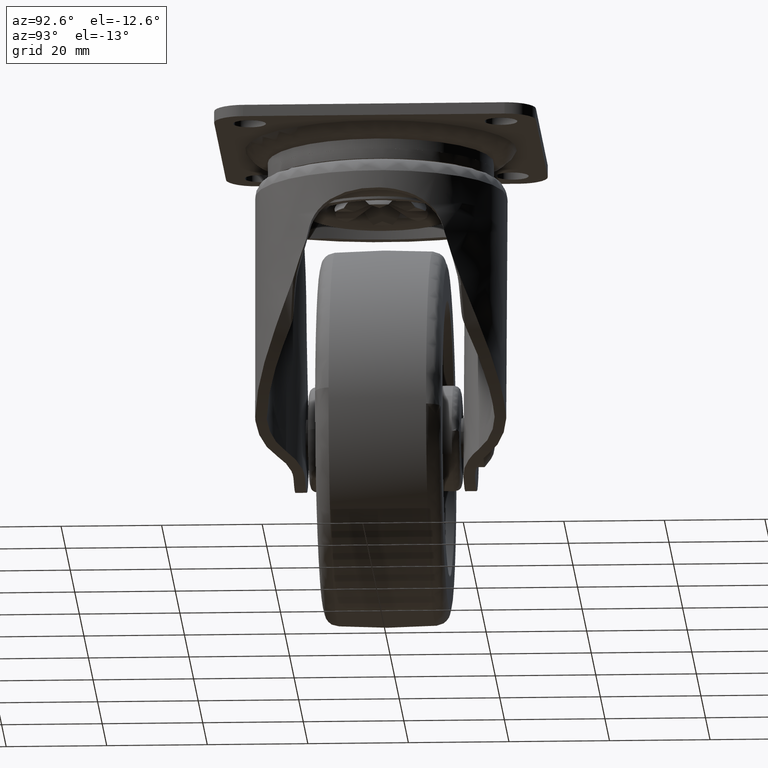
[diagram: clean part render]
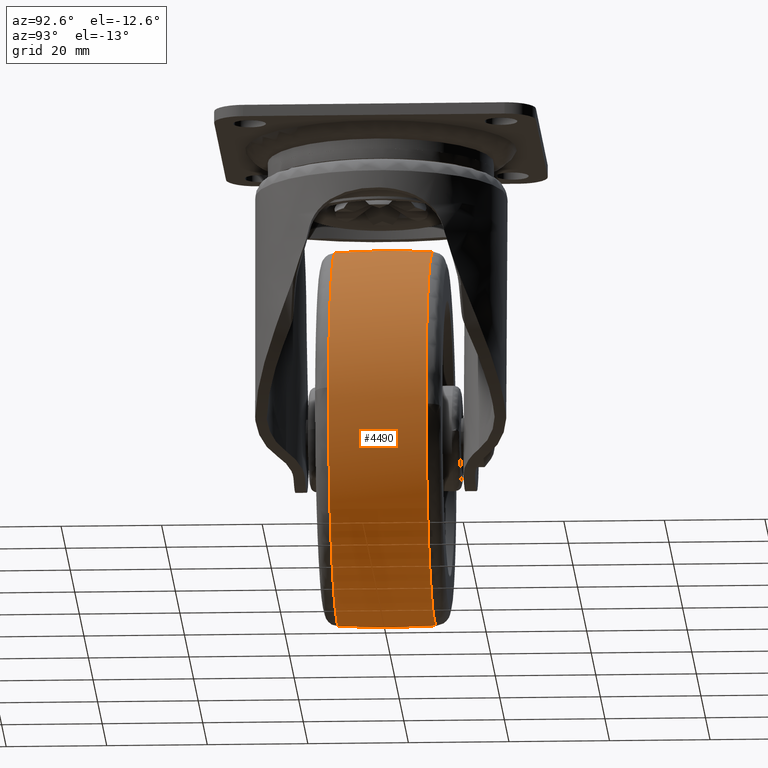
[diagram: same view with one face highlighted and labeled with its STEP entity id]
A machine part, auxiliary view. The second image highlights one B-rep face of the part: STEP entity #4490.
In plain terms, the highlighted face is a freeform B-spline surface patch.
Its self-contained STEP definition (entity closure, byte-faithful):
#3997=CARTESIAN_POINT('',(15.296488320697749,-9.693877630542261,-90.394665833078037));
#3998=VERTEX_POINT('',#3997);
#4012=CARTESIAN_POINT('',(37.113055748854990,-9.693878507396740,-54.165044446754607));
#4013=VERTEX_POINT('',#4012);
#4014=CARTESIAN_POINT('',(15.296488320697755,-9.693877630542261,-90.394665833078037));
#4015=CARTESIAN_POINT('',(37.186434716128566,-9.693877870349839,-80.515845656186073));
#4016=CARTESIAN_POINT('',(37.186434716128552,-9.693878452629468,-56.500000058389318));
#4017=CARTESIAN_POINT('',(37.186434716128552,-9.693878480963674,-55.331369238594370));
#4018=CARTESIAN_POINT('',(37.113055748854983,-9.693878507396740,-54.165044446754607));
#4026=(BOUNDED_CURVE()B_SPLINE_CURVE(2,(#4014,#4015,#4016,#4017,#4018),.UNSPECIFIED.,.F.,.U.)B_SPLINE_CURVE_WITH_KNOTS((3,2,3),(0.069856974361004,0.250000000000000,0.260968089547188),.UNSPECIFIED.)CURVE()GEOMETRIC_REPRESENTATION_ITEM()RATIONAL_B_SPLINE_CURVE((0.882053103067118,0.788949317495201,1.0,0.987150083793160,0.975427679839363))REPRESENTATION_ITEM(''));
#4027=EDGE_CURVE('',#3998,#4013,#4026,.T.);
#4126=CARTESIAN_POINT('',(0.0,-9.693879354238502,-19.313565400650091));
#4127=VERTEX_POINT('',#4126);
#4128=CARTESIAN_POINT('',(37.113055748854983,-9.693878507396740,-54.165044446754607));
#4129=CARTESIAN_POINT('',(34.920386508596998,-9.693879354238504,-19.313565400650088));
#4130=CARTESIAN_POINT('',(0.0,-9.693879354238502,-19.313565400650091));
#4138=(BOUNDED_CURVE()B_SPLINE_CURVE(2,(#4128,#4129,#4130),.UNSPECIFIED.,.F.,.U.)B_SPLINE_CURVE_WITH_KNOTS((3,3),(0.260968089547188,0.500000000000000),.UNSPECIFIED.)CURVE()GEOMETRIC_REPRESENTATION_ITEM()RATIONAL_B_SPLINE_CURVE((0.975427679839363,0.719956697393388,1.0))REPRESENTATION_ITEM(''));
#4139=EDGE_CURVE('',#4013,#4127,#4138,.T.);
#4141=CARTESIAN_POINT('',(-36.937719153433306,-9.693880996460937,-52.206305315464192));
#4142=VERTEX_POINT('',#4141);
#4156=CARTESIAN_POINT('',(0.0,-9.693877551020432,-93.686434716128559));
#4157=VERTEX_POINT('',#4156);
#4158=CARTESIAN_POINT('',(-36.937719153433314,-9.693880996460937,-52.206305315464192));
#4159=CARTESIAN_POINT('',(-37.186434500205301,-9.693880907598924,-54.345949162824482));
#4160=CARTESIAN_POINT('',(-37.186434506624607,-9.693880807809121,-56.500000024353056));
#4161=CARTESIAN_POINT('',(-37.186434617444412,-9.693879085088868,-93.686434727599746));
#4162=CARTESIAN_POINT('',(0.0,-9.693877551020432,-93.686434716128559));
#4170=(BOUNDED_CURVE()B_SPLINE_CURVE(2,(#4158,#4159,#4160,#4161,#4162),.UNSPECIFIED.,.F.,.U.)B_SPLINE_CURVE_WITH_KNOTS((3,2,3),(0.730000038081131,0.750000000000000,1.0),.UNSPECIFIED.)CURVE()GEOMETRIC_REPRESENTATION_ITEM()RATIONAL_B_SPLINE_CURVE((0.956886193143571,0.976568587109744,1.0,0.707106781186547,1.0))REPRESENTATION_ITEM(''));
#4171=EDGE_CURVE('',#4142,#4157,#4170,.T.);
#4173=CARTESIAN_POINT('',(0.0,-9.693877551020432,-93.686434716128559));
#4174=CARTESIAN_POINT('',(8.002434683897370,-9.693877551020432,-93.686434716128574));
#4175=CARTESIAN_POINT('',(15.296488320697755,-9.693877630542261,-90.394665833078037));
#4183=(BOUNDED_CURVE()B_SPLINE_CURVE(2,(#4173,#4174,#4175),.UNSPECIFIED.,.F.,.U.)B_SPLINE_CURVE_WITH_KNOTS((3,3),(0.0,0.069856974361004),.UNSPECIFIED.)CURVE()GEOMETRIC_REPRESENTATION_ITEM()RATIONAL_B_SPLINE_CURVE((1.0,0.918157463691347,0.882053103067118))REPRESENTATION_ITEM(''));
#4184=EDGE_CURVE('',#4157,#3998,#4183,.T.);
#4213=CARTESIAN_POINT('',(37.168865213158810,9.693878929527649,-57.642970888241223));
#4214=VERTEX_POINT('',#4213);
#4215=CARTESIAN_POINT('',(0.0,9.693880400609574,-19.313565468414389));
#4216=VERTEX_POINT('',#4215);
#4217=CARTESIAN_POINT('',(37.168865213158810,9.693878929527649,-57.642970888241223));
#4218=CARTESIAN_POINT('',(37.186434716128552,9.693878953913444,-57.071620527585182));
#4219=CARTESIAN_POINT('',(37.186434716128552,9.693878975815023,-56.500000092271470));
#4220=CARTESIAN_POINT('',(37.186434716128559,9.693880400609574,-19.313565468414385));
#4221=CARTESIAN_POINT('',(0.0,9.693880400609574,-19.313565468414389));
#4229=(BOUNDED_CURVE()B_SPLINE_CURVE(2,(#4217,#4218,#4219,#4220,#4221),.UNSPECIFIED.,.F.,.U.)B_SPLINE_CURVE_WITH_KNOTS((3,2,3),(0.244599652028496,0.250000000000000,0.500000000000000),.UNSPECIFIED.)CURVE()GEOMETRIC_REPRESENTATION_ITEM()RATIONAL_B_SPLINE_CURVE((0.987619537343813,0.993673098799654,1.0,0.707106781186547,1.0))REPRESENTATION_ITEM(''));
#4230=EDGE_CURVE('',#4214,#4216,#4229,.T.);
#4279=CARTESIAN_POINT('',(-37.042657144687368,9.693881896160802,-53.233127239448613));
#4280=VERTEX_POINT('',#4279);
#4294=CARTESIAN_POINT('',(-36.937719077532293,9.693881950813086,-52.206305197779557));
#4295=VERTEX_POINT('',#4294);
#4296=CARTESIAN_POINT('',(-36.937719077532286,9.693881950813086,-52.206305197779557));
#4297=CARTESIAN_POINT('',(-36.997314078526458,9.693881923622985,-52.718987966598867));
#4298=CARTESIAN_POINT('',(-37.042657144687375,9.693881896160802,-53.233127239448606));
#4306=(BOUNDED_CURVE()B_SPLINE_CURVE(2,(#4296,#4297,#4298),.UNSPECIFIED.,.F.,.U.)B_SPLINE_CURVE_WITH_KNOTS((3,3),(0.730000037509517,0.734718454820171),.UNSPECIFIED.)CURVE()GEOMETRIC_REPRESENTATION_ITEM()RATIONAL_B_SPLINE_CURVE((0.956886192018496,0.961529688254952,0.966381850636141))REPRESENTATION_ITEM(''));
#4307=EDGE_CURVE('',#4295,#4280,#4306,.T.);
#4354=CARTESIAN_POINT('',(0.0,9.693877551020471,-93.686434716128559));
#4355=VERTEX_POINT('',#4354);
#4356=CARTESIAN_POINT('',(0.0,9.693877551020471,-93.686434716128559));
#4357=CARTESIAN_POINT('',(36.060501403785679,9.693877551020471,-93.686434716128559));
#4358=CARTESIAN_POINT('',(37.168865213158810,9.693878929527649,-57.642970888241223));
#4366=(BOUNDED_CURVE()B_SPLINE_CURVE(2,(#4356,#4357,#4358),.UNSPECIFIED.,.F.,.U.)B_SPLINE_CURVE_WITH_KNOTS((3,3),(0.0,0.244599652028496),.UNSPECIFIED.)CURVE()GEOMETRIC_REPRESENTATION_ITEM()RATIONAL_B_SPLINE_CURVE((1.0,0.713433682386894,0.987619537343813))REPRESENTATION_ITEM(''));
#4367=EDGE_CURVE('',#4355,#4214,#4366,.T.);
#4369=CARTESIAN_POINT('',(-37.042657144687361,9.693881896160802,-53.233127239448606));
#4370=CARTESIAN_POINT('',(-37.186434442366192,9.693881806725551,-54.863399767134418));
#4371=CARTESIAN_POINT('',(-37.186434448594397,9.693881709906618,-56.500000031098573));
#4372=CARTESIAN_POINT('',(-37.186434590110025,9.693879510010314,-93.686434730777137));
#4373=CARTESIAN_POINT('',(0.0,9.693877551020471,-93.686434716128559));
#4381=(BOUNDED_CURVE()B_SPLINE_CURVE(2,(#4369,#4370,#4371,#4372,#4373),.UNSPECIFIED.,.F.,.U.)B_SPLINE_CURVE_WITH_KNOTS((3,2,3),(0.734718454820170,0.750000000000000,1.0),.UNSPECIFIED.)CURVE()GEOMETRIC_REPRESENTATION_ITEM()RATIONAL_B_SPLINE_CURVE((0.966381850636139,0.982096556175346,1.0,0.707106781186547,1.0))REPRESENTATION_ITEM(''));
#4382=EDGE_CURVE('',#4280,#4355,#4381,.T.);
#4419=CARTESIAN_POINT('',(-36.872461290013071,-10.659959364068644,-52.213883493962470));
#4420=CARTESIAN_POINT('',(-37.626866763903770,-2.336709E-014,-52.126190141233579));
#4421=CARTESIAN_POINT('',(-36.872461290013071,10.659959364068596,-52.213883493962463));
#4422=CARTESIAN_POINT('',(-37.120738089198056,-10.659959364068646,-54.349750928798066));
#4423=CARTESIAN_POINT('',(-37.880223272166802,-2.705907E-014,-54.305757129285077));
#4424=CARTESIAN_POINT('',(-37.120738089198063,10.659959364068593,-54.349750928798073));
#4425=CARTESIAN_POINT('',(-37.120738089198063,-10.659959364068648,-56.500000000000007));
#4426=CARTESIAN_POINT('',(-37.880223272166823,-2.642504E-014,-56.500000000000000));
#4427=CARTESIAN_POINT('',(-37.120738089198063,10.659959364068593,-56.499999999999986));
#4428=CARTESIAN_POINT('',(-37.120738089198056,-10.659959364068650,-93.620738089198070));
#4429=CARTESIAN_POINT('',(-37.880223272166823,-3.162131E-014,-94.380223272166802));
#4430=CARTESIAN_POINT('',(-37.120738089198056,10.659959364068587,-93.620738089198070));
#4431=CARTESIAN_POINT('',(0.0,-10.659959364068648,-93.620738089198070));
#4432=CARTESIAN_POINT('',(0.0,-2.642504E-014,-94.380223272166830));
#4433=CARTESIAN_POINT('',(0.0,10.659959364068593,-93.620738089198085));
#4434=CARTESIAN_POINT('',(37.120738089198056,-10.659959364068650,-93.620738089198070));
#4435=CARTESIAN_POINT('',(37.880223272166823,-3.162131E-014,-94.380223272166802));
#4436=CARTESIAN_POINT('',(37.120738089198056,10.659959364068587,-93.620738089198070));
#4437=CARTESIAN_POINT('',(37.120738089198063,-10.659959364068648,-56.500000000000007));
#4438=CARTESIAN_POINT('',(37.880223272166823,-2.642504E-014,-56.500000000000000));
#4439=CARTESIAN_POINT('',(37.120738089198063,10.659959364068593,-56.499999999999986));
#4440=CARTESIAN_POINT('',(37.120738089198056,-10.659959364068650,-19.379261910801930));
#4441=CARTESIAN_POINT('',(37.880223272166823,-3.162131E-014,-18.619776727833180));
#4442=CARTESIAN_POINT('',(37.120738089198056,10.659959364068587,-19.379261910801930));
#4443=CARTESIAN_POINT('',(0.0,-10.659959364068648,-19.379261910801940));
#4444=CARTESIAN_POINT('',(0.0,-2.642504E-014,-18.619776727833184));
#4445=CARTESIAN_POINT('',(0.0,10.659959364068593,-19.379261910801940));
#4453=(BOUNDED_SURFACE()B_SPLINE_SURFACE(2,2,((#4419,#4422,#4425,#4428,#4431,#4434,#4437,#4440,#4443),(#4420,#4423,#4426,#4429,#4432,#4435,#4438,#4441,#4444),(#4421,#4424,#4427,#4430,#4433,#4436,#4439,#4442,#4445)),.UNSPECIFIED.,.F.,.F.,.U.)B_SPLINE_SURFACE_WITH_KNOTS((3,3),(3,2,2,2,3),(0.0,21.346905622190508),(0.0,4.970561711536944,67.102596067501167,129.234630423465400,191.366664779429610),.UNSPECIFIED.)GEOMETRIC_REPRESENTATION_ITEM()RATIONAL_B_SPLINE_SURFACE(((0.838335189288396,0.855579107517416,0.876107580783854,0.619501611421204,0.876107580783854,0.619501611421204,0.876107580783854,0.619501611421204,0.876107580783854),(0.836215531916516,0.853415850403021,0.873892419216146,0.617935255655254,0.873892419216146,0.617935255655254,0.873892419216146,0.617935255655254,0.873892419216146),(0.838335189288397,0.855579107517416,0.876107580783854,0.619501611421204,0.876107580783854,0.619501611421204,0.876107580783854,0.619501611421204,0.876107580783854)))REPRESENTATION_ITEM('')SURFACE());
#4454=ORIENTED_EDGE('',*,*,#4171,.F.);
#4455=CARTESIAN_POINT('',(-36.937719153433314,-9.693880996460937,-52.206305315464206));
#4456=CARTESIAN_POINT('',(-37.561308180903431,0.000000479177359,-52.133818206189595));
#4457=CARTESIAN_POINT('',(-36.937719077532279,9.693881950813086,-52.206305197779557));
#4465=(BOUNDED_CURVE()B_SPLINE_CURVE(2,(#4455,#4456,#4457),.UNSPECIFIED.,.F.,.U.)B_SPLINE_CURVE_WITH_KNOTS((3,3),(0.457209277091436,0.542790727130090),.UNSPECIFIED.)CURVE()GEOMETRIC_REPRESENTATION_ITEM()RATIONAL_B_SPLINE_CURVE((0.838151404650641,0.836399302096587,0.838151404823495))REPRESENTATION_ITEM(''));
#4466=EDGE_CURVE('',#4142,#4295,#4465,.T.);
#4467=ORIENTED_EDGE('',*,*,#4466,.T.);
#4468=ORIENTED_EDGE('',*,*,#4307,.T.);
#4469=ORIENTED_EDGE('',*,*,#4382,.T.);
#4470=ORIENTED_EDGE('',*,*,#4367,.T.);
#4471=ORIENTED_EDGE('',*,*,#4230,.T.);
#4472=CARTESIAN_POINT('',(0.0,-9.693879354238499,-19.313565400650063));
#4473=CARTESIAN_POINT('',(0.0,0.000000525379786,-18.685777703795480));
#4474=CARTESIAN_POINT('',(0.0,9.693880400609571,-19.313565468414353));
#4482=(BOUNDED_CURVE()B_SPLINE_CURVE(2,(#4472,#4473,#4474),.UNSPECIFIED.,.F.,.U.)B_SPLINE_CURVE_WITH_KNOTS((3,3),(0.457209284355719,0.542790720272847),.UNSPECIFIED.)CURVE()GEOMETRIC_REPRESENTATION_ITEM()RATIONAL_B_SPLINE_CURVE((0.875915522672675,0.874084477228295,0.875915522870734))REPRESENTATION_ITEM(''));
#4483=EDGE_CURVE('',#4127,#4216,#4482,.T.);
#4484=ORIENTED_EDGE('',*,*,#4483,.F.);
#4485=ORIENTED_EDGE('',*,*,#4139,.F.);
#4486=ORIENTED_EDGE('',*,*,#4027,.F.);
#4487=ORIENTED_EDGE('',*,*,#4184,.F.);
#4488=EDGE_LOOP('',(#4454,#4467,#4468,#4469,#4470,#4471,#4484,#4485,#4486,#4487));
#4489=FACE_OUTER_BOUND('',#4488,.T.);
#4490=ADVANCED_FACE('',(#4489),#4453,.T.);